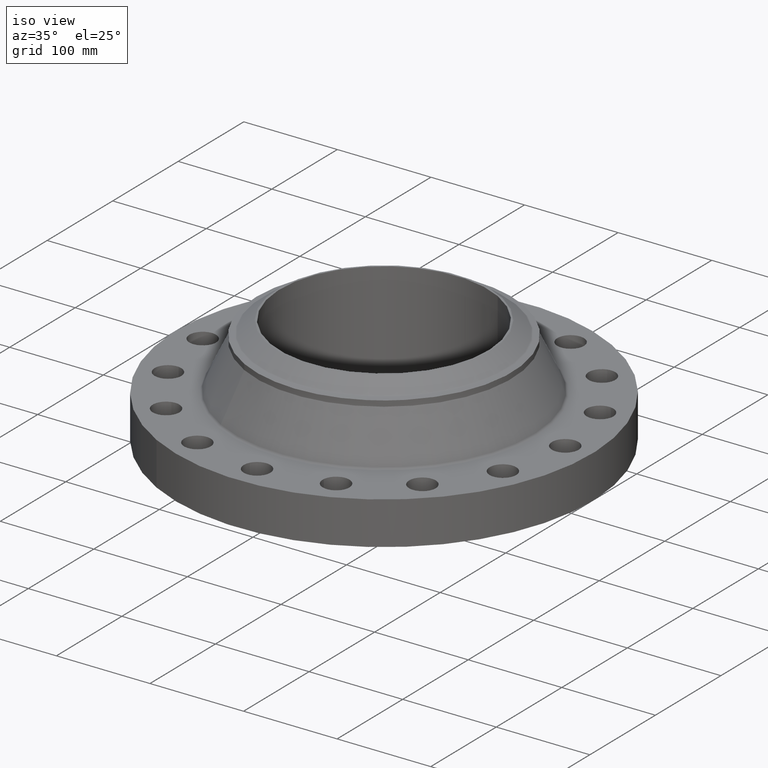
[diagram: clean part render]
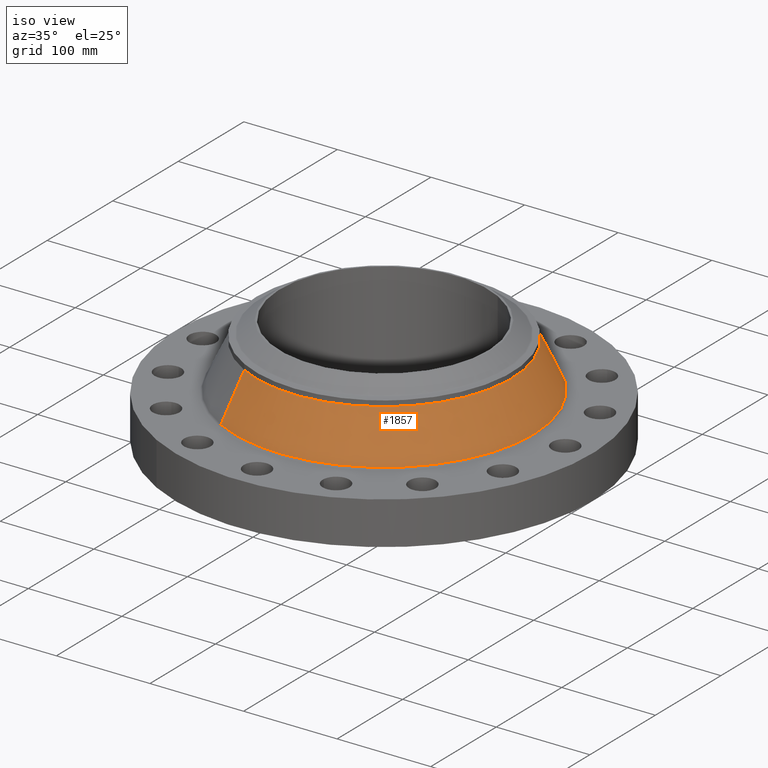
[diagram: same view with one face highlighted and labeled with its STEP entity id]
A machine part, iso view. The second image highlights one B-rep face of the part: STEP entity #1857.
In plain terms, the highlighted conical surface has half-angle 25.551 deg.
Its self-contained STEP definition (entity closure, byte-faithful):
#1676=AXIS2_PLACEMENT_3D('Circle Axis2P3D',#1674,#1675,$) ;
#1844=AXIS2_PLACEMENT_3D('Cone Axis2P3D',#1841,#1842,#1843) ;
#1848=AXIS2_PLACEMENT_3D('Circle Axis2P3D',#1846,#1847,$) ;
#1640=CARTESIAN_POINT('Vertex',(-3.00953413116,-5.50891527516,1.87824226282)) ;
#1647=CARTESIAN_POINT('Vertex',(3.00953413116,5.50891527516,1.87824226282)) ;
#1674=CARTESIAN_POINT('Axis2P3D Location',(0.,0.,1.87824226282)) ;
#1808=CARTESIAN_POINT('Line Origine',(-2.79322320059,-5.11296077267,2.82201381898)) ;
#1812=CARTESIAN_POINT('Vertex',(-2.57691227001,-4.71700627018,3.76578537513)) ;
#1819=CARTESIAN_POINT('Vertex',(2.57691227001,4.71700627018,3.76578537513)) ;
#1822=CARTESIAN_POINT('Line Origine',(2.79322320059,5.11296077267,2.82201381898)) ;
#1841=CARTESIAN_POINT('Axis2P3D Location',(0.,0.,3.76578537513)) ;
#1846=CARTESIAN_POINT('Axis2P3D Location',(0.,0.,3.76578537513)) ;
#1675=DIRECTION('Axis2P3D Direction',(-0.,0.,-0.0393700787402)) ;
#1809=DIRECTION('Vector Direction',(-0.00814106989132,-0.0149021284776,-0.0355197501099)) ;
#1823=DIRECTION('Vector Direction',(0.00814106989132,0.0149021284776,-0.0355197501099)) ;
#1842=DIRECTION('Axis2P3D Direction',(0.,0.,-0.0393700787402)) ;
#1843=DIRECTION('Axis2P3D XDirection',(0.0188750212049,0.0345504945626,0.)) ;
#1847=DIRECTION('Axis2P3D Direction',(-0.,0.,-0.0393700787402)) ;
#1810=VECTOR('Line Direction',#1809,0.0393700787402) ;
#1824=VECTOR('Line Direction',#1823,0.0393700787402) ;
#1852=ORIENTED_EDGE('',*,*,#1678,.F.) ;
#1853=ORIENTED_EDGE('',*,*,#1826,.T.) ;
#1854=ORIENTED_EDGE('',*,*,#1850,.T.) ;
#1855=ORIENTED_EDGE('',*,*,#1814,.F.) ;
#1857=ADVANCED_FACE('PartBody',(#1856),#1845,.T.) ;
#1677=CIRCLE('generated circle',#1676,6.27737550219) ;
#1849=CIRCLE('generated circle',#1848,5.37500000002) ;
#1845=CONICAL_SURFACE('Cone',#1844,5.37500000002,0.445949235774) ;
#1678=EDGE_CURVE('',#1648,#1641,#1677,.T.) ;
#1814=EDGE_CURVE('',#1641,#1813,#1811,.F.) ;
#1826=EDGE_CURVE('',#1648,#1820,#1825,.F.) ;
#1850=EDGE_CURVE('',#1820,#1813,#1849,.T.) ;
#1851=EDGE_LOOP('',(#1852,#1853,#1854,#1855)) ;
#1856=FACE_OUTER_BOUND('',#1851,.T.) ;
#1811=LINE('Line',#1808,#1810) ;
#1825=LINE('Line',#1822,#1824) ;
#1641=VERTEX_POINT('',#1640) ;
#1648=VERTEX_POINT('',#1647) ;
#1813=VERTEX_POINT('',#1812) ;
#1820=VERTEX_POINT('',#1819) ;